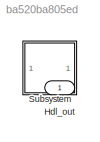
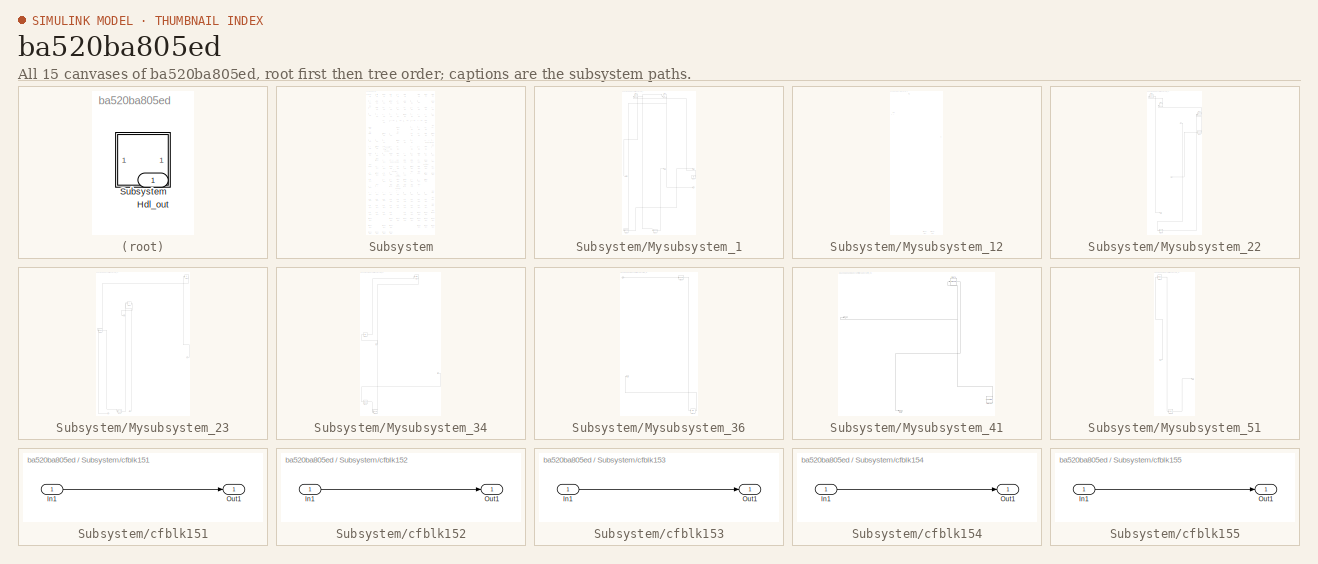
[diagram: thumbnail index - all 15 canvases of the model, root first then tree order]
MODEL slx_ba520ba805ed
KIND model
CONFIG AbsTol = auto
CONFIG EnableMultiTasking = off
CONFIG FixedStep = auto
CONFIG MaxStep = auto
CONFIG MinStep = auto
CONFIG RelTol = 1e-3
CONFIG SampleTimeConstraint = Unconstrained
CONFIG SolverName = VariableStepAuto
CONFIG StartTime = 0.0
CONFIG StopTime = 10.0
BLOCK [Outport] Hdl_out
  OutDataTypeStr = uint8
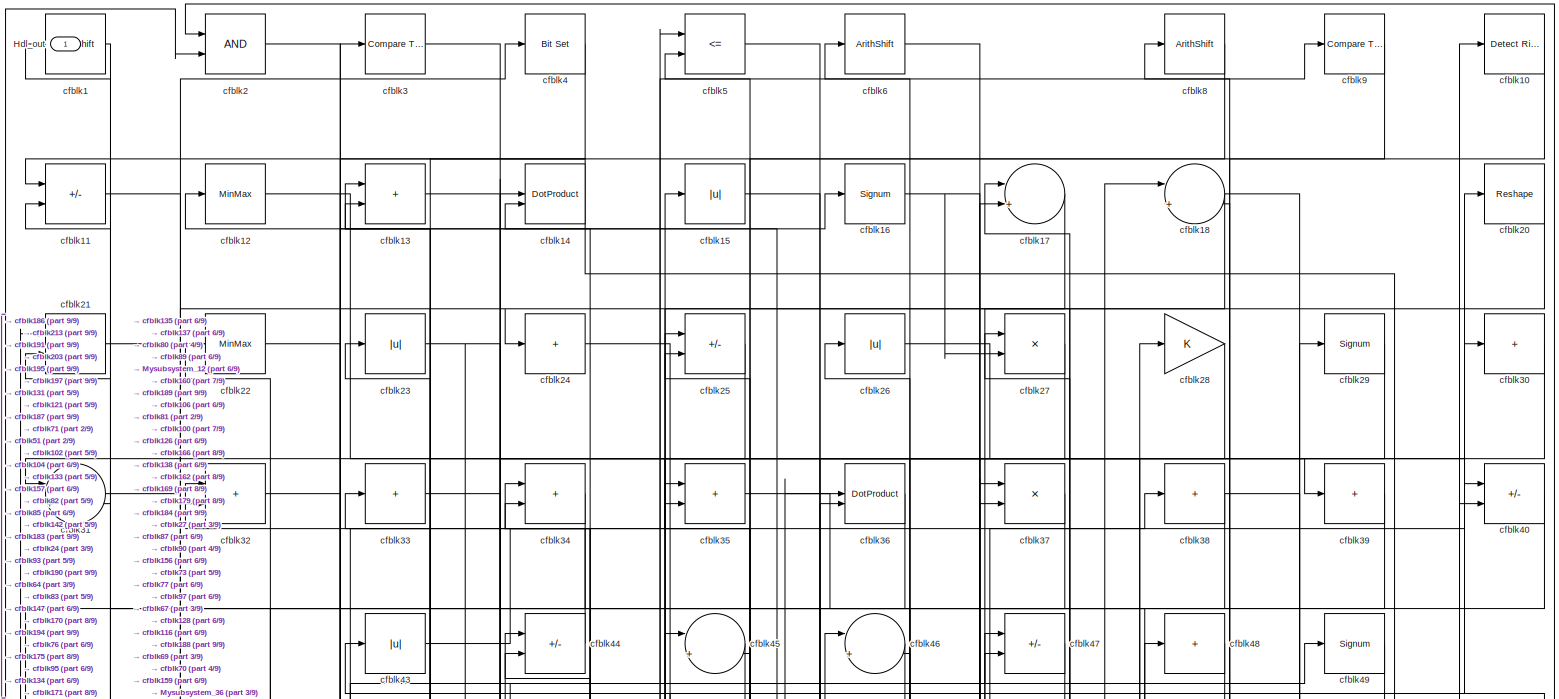
[diagram: Subsystem - part 1/9, full width, top band]
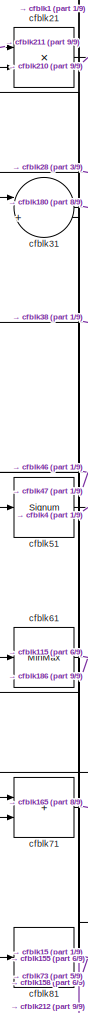
[diagram: Subsystem - part 2/9, top left region]
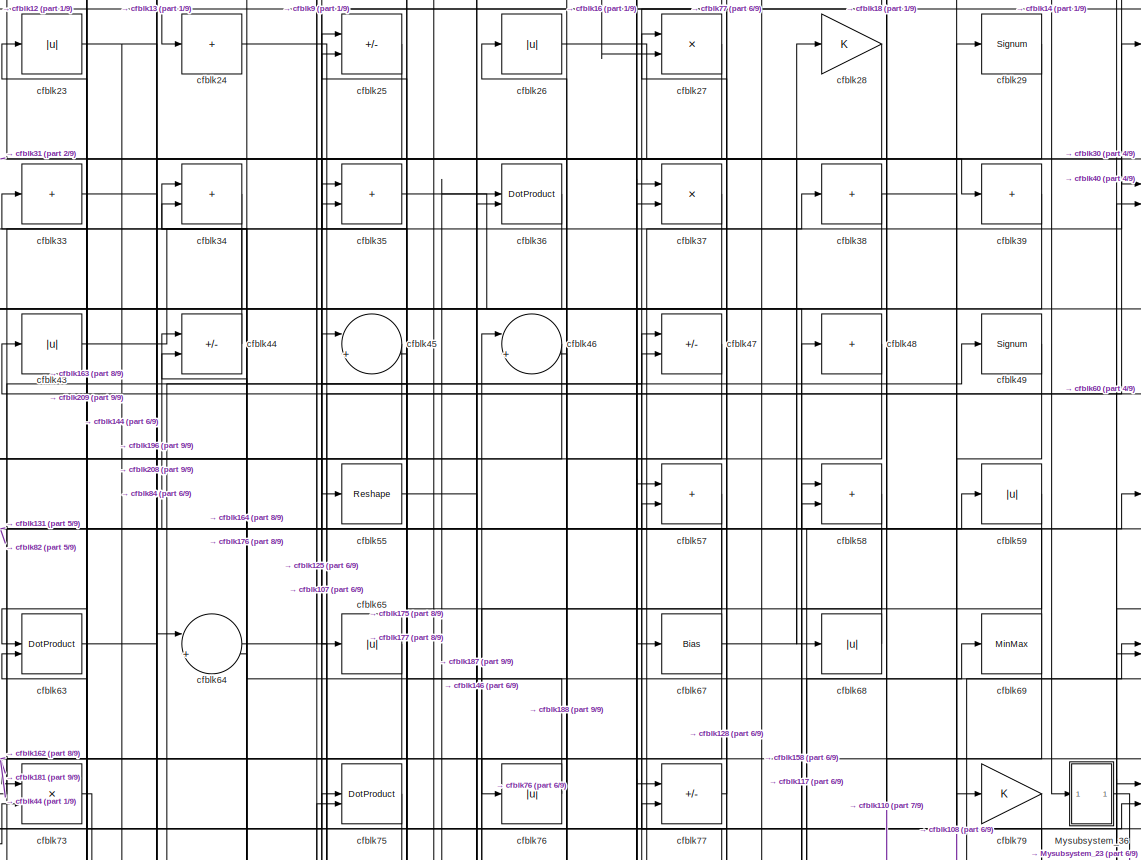
[diagram: Subsystem - part 3/9, top center region]
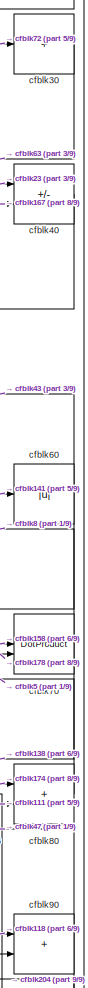
[diagram: Subsystem - part 4/9, top right region]
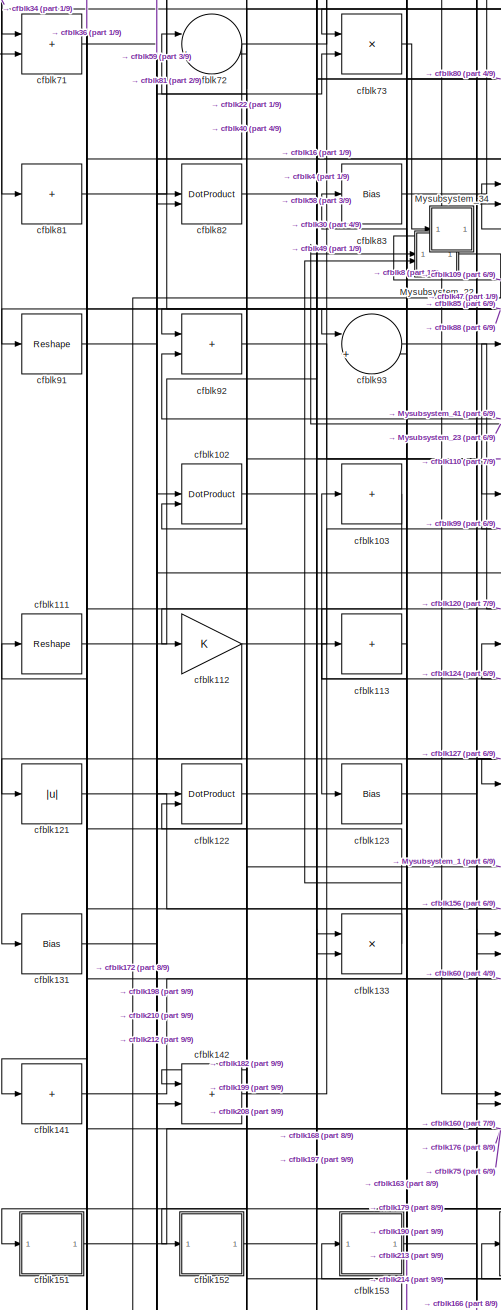
[diagram: Subsystem - part 5/9, middle left region]
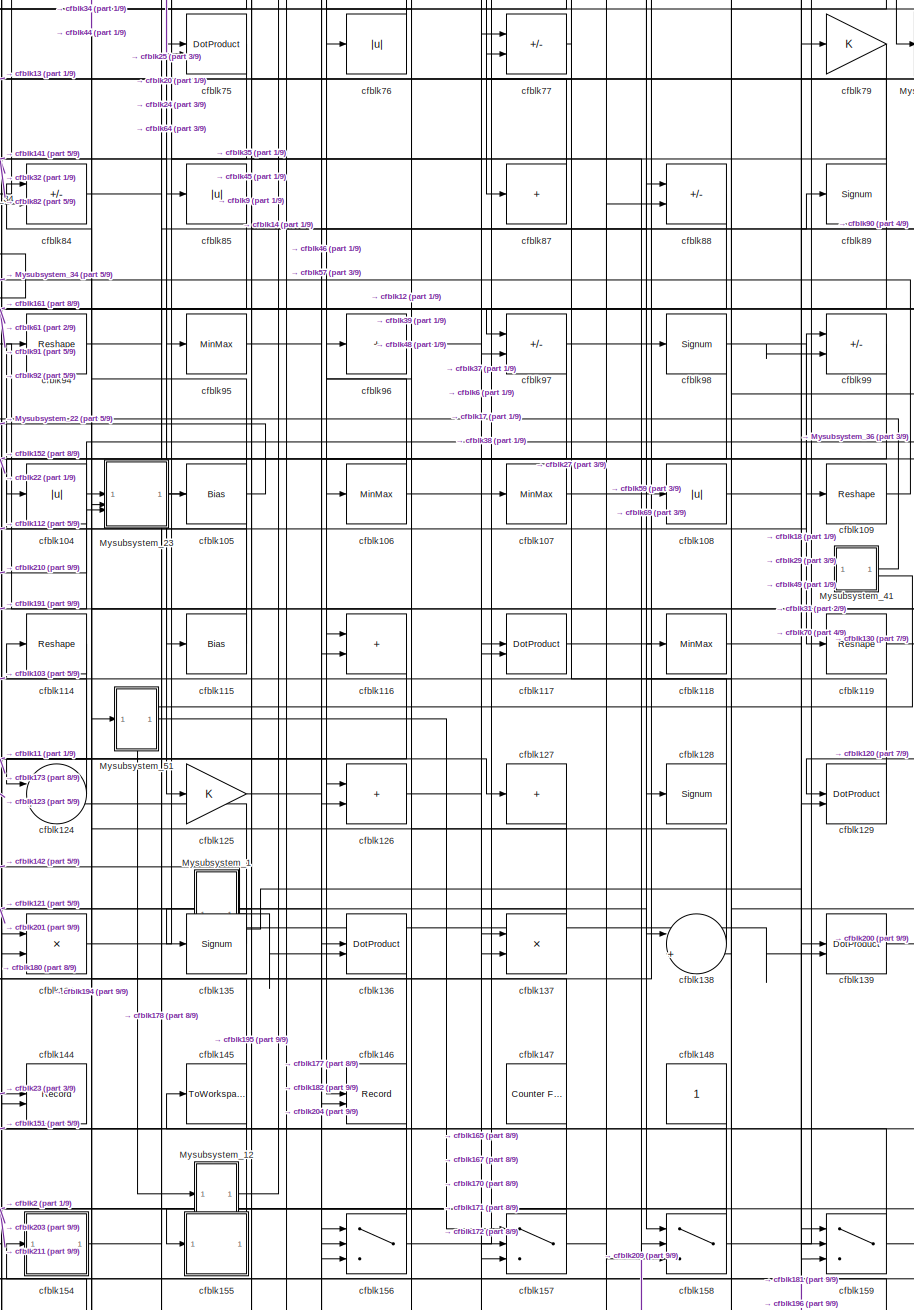
[diagram: Subsystem - part 6/9, central region]
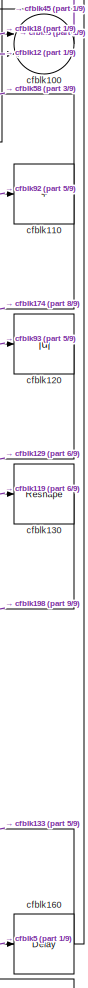
[diagram: Subsystem - part 7/9, middle right region]
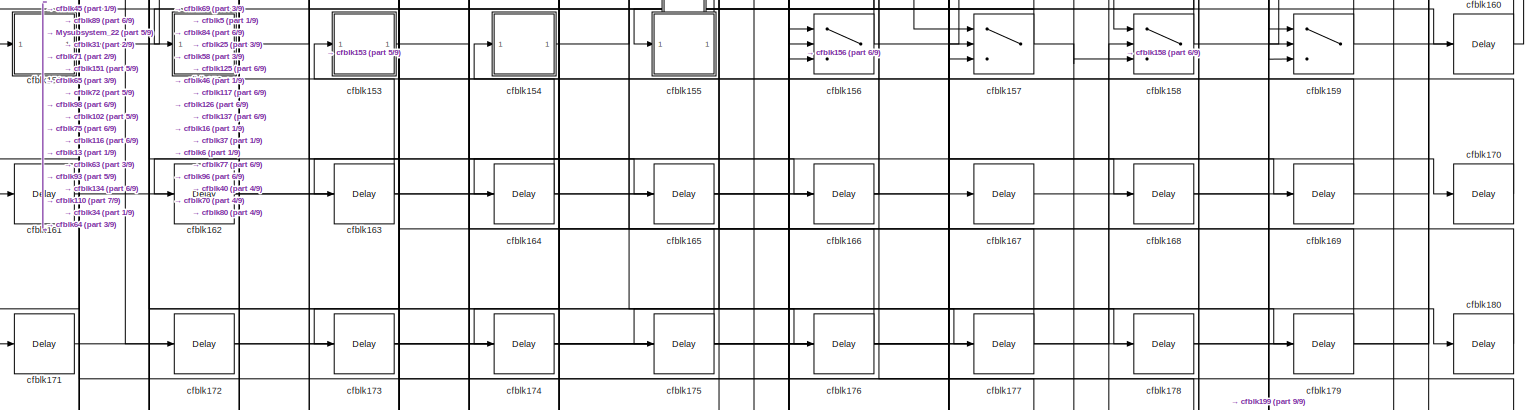
[diagram: Subsystem - part 8/9, full width, bottom band]
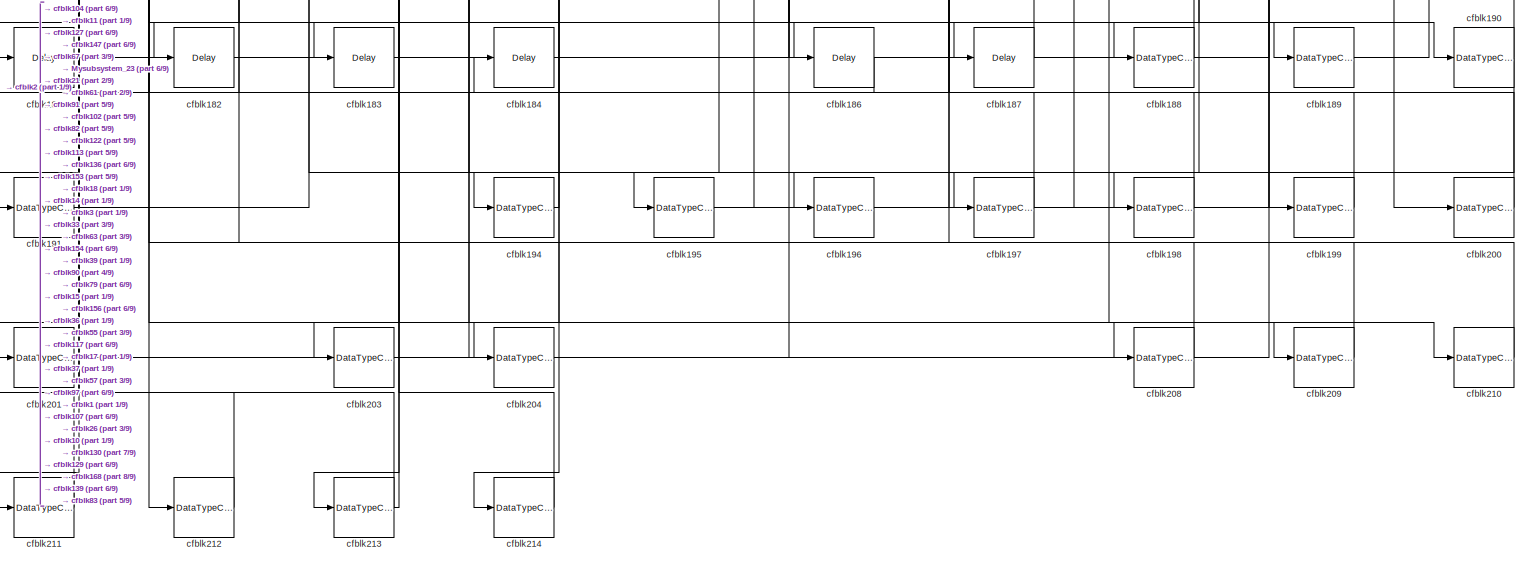
[diagram: Subsystem - part 9/9, full width, bottom band]
BLOCK [SubSystem] Subsystem
BLOCK [Outport] Subsystem/Hdl_out
  OutDataTypeStr = uint8
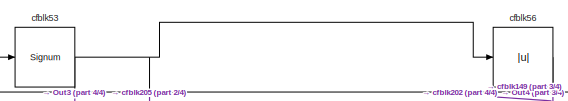
[diagram: Subsystem/Mysubsystem_1 - part 1/4, top center region]
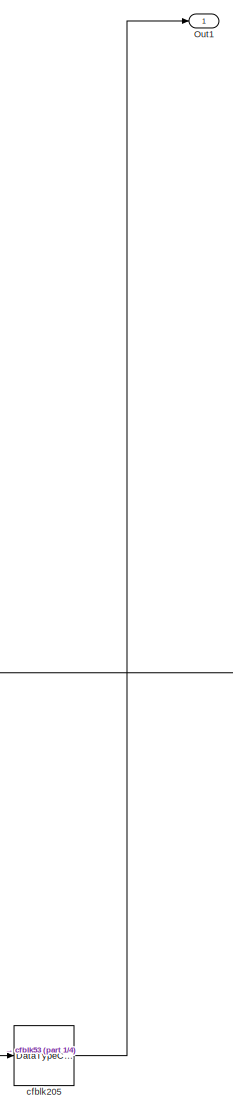
[diagram: Subsystem/Mysubsystem_1 - part 2/4, bottom center region]
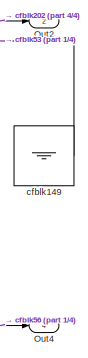
[diagram: Subsystem/Mysubsystem_1 - part 3/4, middle right region]
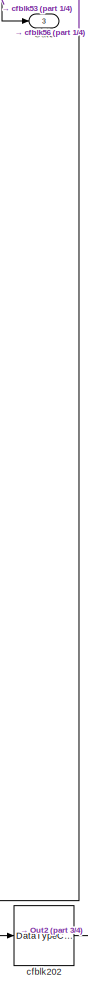
[diagram: Subsystem/Mysubsystem_1 - part 4/4, bottom left region]
BLOCK [SubSystem] Subsystem/Mysubsystem_1
  RTWFcnName = Mysubsystem_1
  RTWFcnNameOpts = User specified
  RTWFileNameOpts = Use function name
  RTWSystemCode = Reusable function
  TreatAsAtomicUnit = on
BLOCK [Outport] Subsystem/Mysubsystem_1/Out1
BLOCK [Outport] Subsystem/Mysubsystem_1/Out2
  Port = 2
BLOCK [Outport] Subsystem/Mysubsystem_1/Out3
  Port = 3
BLOCK [Outport] Subsystem/Mysubsystem_1/Out4
  Port = 4
BLOCK [Ground] Subsystem/Mysubsystem_1/cfblk149
BLOCK [DataTypeConversion] Subsystem/Mysubsystem_1/cfblk202
  OutDataTypeStr = uint8
  RndMeth = Floor
  SaturateOnIntegerOverflow = off
BLOCK [DataTypeConversion] Subsystem/Mysubsystem_1/cfblk205
  OutDataTypeStr = uint8
  RndMeth = Floor
  SaturateOnIntegerOverflow = off
BLOCK [Signum] Subsystem/Mysubsystem_1/cfblk53
BLOCK [Abs] Subsystem/Mysubsystem_1/cfblk56
  SaturateOnIntegerOverflow = off
BLOCK [SubSystem] Subsystem/Mysubsystem_12
  RTWFcnName = Mysubsystem_12
  RTWFcnNameOpts = User specified
  RTWFileNameOpts = Use function name
  RTWSystemCode = Reusable function
  TreatAsAtomicUnit = on
BLOCK [Inport] Subsystem/Mysubsystem_12/In1
BLOCK [Outport] Subsystem/Mysubsystem_12/Out1
BLOCK [DataTypeConversion] Subsystem/Mysubsystem_12/cfblk206
  OutDataTypeStr = uint8
  RndMeth = Floor
  SaturateOnIntegerOverflow = off
BLOCK [DataTypeConversion] Subsystem/Mysubsystem_12/cfblk207
  OutDataTypeStr = uint8
  RndMeth = Floor
  SaturateOnIntegerOverflow = off
BLOCK [Sum] Subsystem/Mysubsystem_12/cfblk42
  IconShape = rectangular
  Inputs = +
BLOCK [SubSystem] Subsystem/Mysubsystem_22
  RTWFcnName = Mysubsystem_22
  RTWFcnNameOpts = User specified
  RTWFileNameOpts = Use function name
  RTWSystemCode = Reusable function
  TreatAsAtomicUnit = on
BLOCK [Inport] Subsystem/Mysubsystem_22/In1
BLOCK [Inport] Subsystem/Mysubsystem_22/In2
  Port = 2
BLOCK [Outport] Subsystem/Mysubsystem_22/Out1
BLOCK [DataTypeConversion] Subsystem/Mysubsystem_22/cfblk192
  OutDataTypeStr = uint8
  RndMeth = Floor
  SaturateOnIntegerOverflow = off
BLOCK [Signum] Subsystem/Mysubsystem_22/cfblk41
BLOCK [Sum] Subsystem/Mysubsystem_22/cfblk52
  IconShape = rectangular
  Inputs = +
BLOCK [DotProduct] Subsystem/Mysubsystem_22/cfblk66
  OutDataTypeStr = Inherit: Inherit via internal rule
BLOCK [Reshape] Subsystem/Mysubsystem_22/cfblk86
BLOCK [SubSystem] Subsystem/Mysubsystem_23
  RTWFcnName = Mysubsystem_23
  RTWFcnNameOpts = User specified
  RTWFileNameOpts = Use function name
  RTWSystemCode = Reusable function
  TreatAsAtomicUnit = on
BLOCK [Inport] Subsystem/Mysubsystem_23/In1
BLOCK [Inport] Subsystem/Mysubsystem_23/In2
  Port = 2
BLOCK [Inport] Subsystem/Mysubsystem_23/In3
  Port = 3
BLOCK [Outport] Subsystem/Mysubsystem_23/Out1
BLOCK [DotProduct] Subsystem/Mysubsystem_23/cfblk101
  OutDataTypeStr = Inherit: Inherit via internal rule
BLOCK [DataTypeConversion] Subsystem/Mysubsystem_23/cfblk193
  OutDataTypeStr = uint8
  RndMeth = Floor
  SaturateOnIntegerOverflow = off
BLOCK [Abs] Subsystem/Mysubsystem_23/cfblk50
  SaturateOnIntegerOverflow = off
BLOCK [Product] Subsystem/Mysubsystem_23/cfblk74
  Inputs = */
  RndMeth = Zero
  SaturateOnIntegerOverflow = on
BLOCK [SubSystem] Subsystem/Mysubsystem_34
  RTWFcnName = Mysubsystem_34
  RTWFcnNameOpts = User specified
  RTWFileNameOpts = Use function name
  RTWSystemCode = Reusable function
  TreatAsAtomicUnit = on
BLOCK [Inport] Subsystem/Mysubsystem_34/In1
BLOCK [Inport] Subsystem/Mysubsystem_34/In2
  Port = 2
BLOCK [Signum] Subsystem/Mysubsystem_34/cfblk132
BLOCK [Record] Subsystem/Mysubsystem_34/cfblk143
  CompatibilityTag = XY
  FileSettingsInternal = {"entries":[{"content":{"excelSettings":{"content":{},"type":"Streamout.ExcelSettings"}},"type":"Streamout.FileSettingStorage","uuid":""}],"packageUris":["http:\/\/schema.mathworks.com\/mf0\/streamout_blocks\/R2020a"],"version":"1.0"}  <repeated x3 — deduplicated; at blocks: cfblk143, cfblk144, cfblk146>
  Layout = [1 1]
  SignalsInternal = {"entries":[{"content":{},"type":"RecordBlkView.InputSignals","uuid":""}],"packageUris":["http:\/\/schema.mathworks.com\/mf0\/streamout_blocks\/R2020a"],"version":"1.0"}
  VisualizationBindings = {"xyplotplugin":{"info":[{"series":[],"subplotID":1}]}}
  st = -1
BLOCK [Bias] Subsystem/Mysubsystem_34/cfblk62
  Bias = 0.0
  SaturateOnIntegerOverflow = off
BLOCK [Reference] Subsystem/Mysubsystem_34/cfblk7  REF=hdlsllib/Logic and Bit
Operations/Bit Slice
  SourceBlock = hdlsllib/Logic and Bit\nOperations/Bit Slice
  SourceType = Bit Slice
BLOCK [SubSystem] Subsystem/Mysubsystem_36
  RTWFcnName = Mysubsystem_36
  RTWFcnNameOpts = User specified
  RTWFileNameOpts = Use function name
  RTWSystemCode = Reusable function
  TreatAsAtomicUnit = on
BLOCK [Inport] Subsystem/Mysubsystem_36/In1
BLOCK [Outport] Subsystem/Mysubsystem_36/Out1
BLOCK [Bias] Subsystem/Mysubsystem_36/cfblk140
  Bias = 0.0
  SaturateOnIntegerOverflow = off
BLOCK [Reshape] Subsystem/Mysubsystem_36/cfblk19
BLOCK [SubSystem] Subsystem/Mysubsystem_41
  RTWFcnName = Mysubsystem_41
  RTWFcnNameOpts = User specified
  RTWFileNameOpts = Use function name
  RTWSystemCode = Reusable function
  TreatAsAtomicUnit = on
BLOCK [Outport] Subsystem/Mysubsystem_41/Out2
  Port = 2
BLOCK [Reference] Subsystem/Mysubsystem_41/cfblk150  REF=hdlsllib/Sources/Counter
Free-Running
  SourceBlock = hdlsllib/Sources/Counter\nFree-Running
  SourceType = Counter Free-Running
BLOCK [Signum] Subsystem/Mysubsystem_41/cfblk78
BLOCK [Outport] Subsystem/Mysubsystem_41/y
BLOCK [SubSystem] Subsystem/Mysubsystem_51
  RTWFcnName = Mysubsystem_51
  RTWFcnNameOpts = User specified
  RTWFileNameOpts = Use function name
  RTWSystemCode = Reusable function
  TreatAsAtomicUnit = on
BLOCK [Inport] Subsystem/Mysubsystem_51/In1
BLOCK [Outport] Subsystem/Mysubsystem_51/Out1
BLOCK [Delay] Subsystem/Mysubsystem_51/cfblk185
  InputPortMap = u0
  SampleTime = 1
BLOCK [MinMax] Subsystem/Mysubsystem_51/cfblk54
BLOCK [ArithShift] Subsystem/cfblk1
  BitShiftNumber = 8
  InputPortMap = u0
BLOCK [Reference] Subsystem/cfblk10  REF=hdlsllib/Logic and Bit
Operations/Detect Rise
Positive
  SourceBlock = hdlsllib/Logic and Bit\nOperations/Detect Rise\nPositive
  SourceType = Detect Rise Positive
BLOCK [Sum] Subsystem/cfblk100
  Inputs = |++
  OutDataTypeStr = uint8
BLOCK [DotProduct] Subsystem/cfblk102
  OutDataTypeStr = uint8
BLOCK [Sum] Subsystem/cfblk103
  IconShape = rectangular
  Inputs = +
  OutDataTypeStr = uint8
BLOCK [Abs] Subsystem/cfblk104
  OutDataTypeStr = uint8
  SaturateOnIntegerOverflow = off
BLOCK [Bias] Subsystem/cfblk105
  Bias = 0.0
  SaturateOnIntegerOverflow = off
BLOCK [MinMax] Subsystem/cfblk106
  OutDataTypeStr = uint8
BLOCK [MinMax] Subsystem/cfblk107
  OutDataTypeStr = uint8
BLOCK [Abs] Subsystem/cfblk108
  OutDataTypeStr = uint8
  SaturateOnIntegerOverflow = off
BLOCK [Reshape] Subsystem/cfblk109
BLOCK [Sum] Subsystem/cfblk11
  IconShape = rectangular
  Inputs = +-
  OutDataTypeStr = uint8
BLOCK [Sum] Subsystem/cfblk110
  IconShape = rectangular
  Inputs = +
  OutDataTypeStr = uint8
BLOCK [Reshape] Subsystem/cfblk111
BLOCK [Gain] Subsystem/cfblk112
  OutDataTypeStr = uint8
BLOCK [Sum] Subsystem/cfblk113
  IconShape = rectangular
  Inputs = +
  OutDataTypeStr = uint8
BLOCK [Reshape] Subsystem/cfblk114
BLOCK [Bias] Subsystem/cfblk115
  Bias = 0.0
  SaturateOnIntegerOverflow = off
BLOCK [Sum] Subsystem/cfblk116
  IconShape = rectangular
  OutDataTypeStr = uint8
BLOCK [DotProduct] Subsystem/cfblk117
  OutDataTypeStr = uint8
BLOCK [MinMax] Subsystem/cfblk118
  OutDataTypeStr = uint8
BLOCK [Reshape] Subsystem/cfblk119
BLOCK [MinMax] Subsystem/cfblk12
  OutDataTypeStr = uint8
BLOCK [Abs] Subsystem/cfblk120
  OutDataTypeStr = uint8
  SaturateOnIntegerOverflow = off
BLOCK [Abs] Subsystem/cfblk121
  OutDataTypeStr = uint8
  SaturateOnIntegerOverflow = off
BLOCK [DotProduct] Subsystem/cfblk122
  OutDataTypeStr = uint8
BLOCK [Bias] Subsystem/cfblk123
  Bias = 0.0
  SaturateOnIntegerOverflow = off
BLOCK [Sum] Subsystem/cfblk124
  Inputs = |++
  OutDataTypeStr = uint8
BLOCK [Gain] Subsystem/cfblk125
  OutDataTypeStr = uint8
BLOCK [Sum] Subsystem/cfblk126
  IconShape = rectangular
  OutDataTypeStr = uint8
BLOCK [Sum] Subsystem/cfblk127
  IconShape = rectangular
  Inputs = +
  OutDataTypeStr = uint8
BLOCK [Signum] Subsystem/cfblk128
BLOCK [DotProduct] Subsystem/cfblk129
  OutDataTypeStr = uint8
BLOCK [Sum] Subsystem/cfblk13
  IconShape = rectangular
  OutDataTypeStr = uint8
BLOCK [Reshape] Subsystem/cfblk130
BLOCK [Bias] Subsystem/cfblk131
  Bias = 0.0
  SaturateOnIntegerOverflow = off
BLOCK [Product] Subsystem/cfblk133
  Inputs = */
  OutDataTypeStr = uint8
  RndMeth = Zero
  SaturateOnIntegerOverflow = on
BLOCK [Product] Subsystem/cfblk134
  Inputs = */
  OutDataTypeStr = uint8
  RndMeth = Zero
  SaturateOnIntegerOverflow = on
BLOCK [Signum] Subsystem/cfblk135
BLOCK [DotProduct] Subsystem/cfblk136
  OutDataTypeStr = uint8
BLOCK [Product] Subsystem/cfblk137
  Inputs = */
  OutDataTypeStr = uint8
  RndMeth = Zero
  SaturateOnIntegerOverflow = on
BLOCK [Sum] Subsystem/cfblk138
  Inputs = |++
  OutDataTypeStr = uint8
BLOCK [DotProduct] Subsystem/cfblk139
  OutDataTypeStr = uint8
BLOCK [DotProduct] Subsystem/cfblk14
  OutDataTypeStr = uint8
BLOCK [Sum] Subsystem/cfblk141
  IconShape = rectangular
  Inputs = +
  OutDataTypeStr = uint8
BLOCK [Sum] Subsystem/cfblk142
  IconShape = rectangular
  OutDataTypeStr = uint8
BLOCK [Record] Subsystem/cfblk144
  CompatibilityTag = XY
  Layout = [1 1]
  SignalsInternal = {"entries":[{"content":{"signals":[{"content":{"blockPath":[],"dimensions":[1],"domain":"","lineColor":"#a2142f","plots":[1],"port":1,"signalID":16732,"signalName":"cfblk23"},"type":"RecordBlkView.Signal","uuid":""},{"content":{"blockPath":[],"dimensions":[1],"domain":"","lineColor":"#139fff","plots":[1],"port":2,"signalID":16735,"signalName":"cfblk97"},"type":"RecordBlkView.Signal","uuid":""}]},"...<+142ch>
  VisualizationBindings = {"xyplotplugin":{"info":[{"series":[{"bindingParametersList":[{"parameter":"X-Axis","signalID":16732,"signalName":"cfblk23"},{"parameter":"Y-Axis","signalID":16735,"signalName":"cfblk97"}],"seriesID":30056}],"subplotID":1}]}}
  st = -1
BLOCK [ToWorkspace] Subsystem/cfblk145
  MaxDataPoints = inf
  SampleTime = -1
  SaveFormat = Timeseries
  VariableName = simout
BLOCK [Record] Subsystem/cfblk146
  CompatibilityTag = XY
  Layout = [1 1]
  SignalsInternal = {"entries":[{"content":{"signals":[{"content":{"blockPath":[],"dimensions":[1],"domain":"","lineColor":"#a2142f","plots":[1],"port":1,"signalID":16724,"signalName":"cfblk57"},"type":"RecordBlkView.Signal","uuid":""},{"content":{"blockPath":[],"dimensions":[1],"domain":"","lineColor":"#139fff","plots":[1],"port":2,"signalID":16727,"signalName":"cfblk29"},"type":"RecordBlkView.Signal","uuid":""}]},"...<+142ch>
  VisualizationBindings = {"xyplotplugin":{"info":[{"series":[{"bindingParametersList":[{"parameter":"X-Axis","signalID":16724,"signalName":"cfblk57"},{"parameter":"Y-Axis","signalID":16727,"signalName":"cfblk29"}],"seriesID":52656}],"subplotID":1}]}}
  st = -1
BLOCK [Reference] Subsystem/cfblk147  REF=hdlsllib/Sources/Counter
Free-Running
  SourceBlock = hdlsllib/Sources/Counter\nFree-Running
  SourceType = Counter Free-Running
BLOCK [Constant] Subsystem/cfblk148
  OutDataTypeStr = uint8
  SampleTime = -1
BLOCK [Abs] Subsystem/cfblk15
  OutDataTypeStr = uint8
  SaturateOnIntegerOverflow = off
BLOCK [SubSystem] Subsystem/cfblk151
  LibrarySourceBlock = hdlsllib/Ports &\nSubsystems/Subsystem
BLOCK [Inport] Subsystem/cfblk151/In1
BLOCK [Outport] Subsystem/cfblk151/Out1
BLOCK [SubSystem] Subsystem/cfblk152
  LibrarySourceBlock = hdlsllib/Ports &\nSubsystems/Subsystem
BLOCK [Inport] Subsystem/cfblk152/In1
BLOCK [Outport] Subsystem/cfblk152/Out1
BLOCK [SubSystem] Subsystem/cfblk153
  LibrarySourceBlock = hdlsllib/Ports &\nSubsystems/Subsystem
BLOCK [Inport] Subsystem/cfblk153/In1
BLOCK [Outport] Subsystem/cfblk153/Out1
BLOCK [SubSystem] Subsystem/cfblk154
  LibrarySourceBlock = hdlsllib/Ports &\nSubsystems/Subsystem
BLOCK [Inport] Subsystem/cfblk154/In1
BLOCK [Outport] Subsystem/cfblk154/Out1
BLOCK [SubSystem] Subsystem/cfblk155
  LibrarySourceBlock = hdlsllib/Ports &\nSubsystems/Subsystem
BLOCK [Inport] Subsystem/cfblk155/In1
BLOCK [Outport] Subsystem/cfblk155/Out1
BLOCK [Switch] Subsystem/cfblk156
  InputSameDT = off
  OutDataTypeStr = uint8
  SaturateOnIntegerOverflow = off
BLOCK [Switch] Subsystem/cfblk157
  InputSameDT = off
  OutDataTypeStr = uint8
  SaturateOnIntegerOverflow = off
BLOCK [Switch] Subsystem/cfblk158
  InputSameDT = off
  OutDataTypeStr = uint8
  SaturateOnIntegerOverflow = off
BLOCK [Switch] Subsystem/cfblk159
  InputSameDT = off
  OutDataTypeStr = uint8
  SaturateOnIntegerOverflow = off
BLOCK [Signum] Subsystem/cfblk16
BLOCK [Delay] Subsystem/cfblk160
  InputPortMap = u0
  SampleTime = 1
BLOCK [Delay] Subsystem/cfblk161
  InputPortMap = u0
  SampleTime = 1
BLOCK [Delay] Subsystem/cfblk162
  InputPortMap = u0
  SampleTime = 1
BLOCK [Delay] Subsystem/cfblk163
  InputPortMap = u0
  SampleTime = 1
BLOCK [Delay] Subsystem/cfblk164
  InputPortMap = u0
  SampleTime = 1
BLOCK [Delay] Subsystem/cfblk165
  InputPortMap = u0
  SampleTime = 1
BLOCK [Delay] Subsystem/cfblk166
  InputPortMap = u0
  SampleTime = 1
BLOCK [Delay] Subsystem/cfblk167
  InputPortMap = u0
  SampleTime = 1
BLOCK [Delay] Subsystem/cfblk168
  InputPortMap = u0
  SampleTime = 1
BLOCK [Delay] Subsystem/cfblk169
  InputPortMap = u0
  SampleTime = 1
BLOCK [Sum] Subsystem/cfblk17
  Inputs = |++
  OutDataTypeStr = uint8
BLOCK [Delay] Subsystem/cfblk170
  InputPortMap = u0
  SampleTime = 1
BLOCK [Delay] Subsystem/cfblk171
  InputPortMap = u0
  SampleTime = 1
BLOCK [Delay] Subsystem/cfblk172
  InputPortMap = u0
  SampleTime = 1
BLOCK [Delay] Subsystem/cfblk173
  InputPortMap = u0
  SampleTime = 1
BLOCK [Delay] Subsystem/cfblk174
  InputPortMap = u0
  SampleTime = 1
BLOCK [Delay] Subsystem/cfblk175
  InputPortMap = u0
  SampleTime = 1
BLOCK [Delay] Subsystem/cfblk176
  InputPortMap = u0
  SampleTime = 1
BLOCK [Delay] Subsystem/cfblk177
  InputPortMap = u0
  SampleTime = 1
BLOCK [Delay] Subsystem/cfblk178
  InputPortMap = u0
  SampleTime = 1
BLOCK [Delay] Subsystem/cfblk179
  InputPortMap = u0
  SampleTime = 1
BLOCK [Sum] Subsystem/cfblk18
  Inputs = |++
  OutDataTypeStr = uint8
BLOCK [Delay] Subsystem/cfblk180
  InputPortMap = u0
  SampleTime = 1
BLOCK [Delay] Subsystem/cfblk181
  InputPortMap = u0
  SampleTime = 1
BLOCK [Delay] Subsystem/cfblk182
  InputPortMap = u0
  SampleTime = 1
BLOCK [Delay] Subsystem/cfblk183
  InputPortMap = u0
  SampleTime = 1
BLOCK [Delay] Subsystem/cfblk184
  InputPortMap = u0
  SampleTime = 1
BLOCK [Delay] Subsystem/cfblk186
  InputPortMap = u0
  SampleTime = 1
BLOCK [Delay] Subsystem/cfblk187
  InputPortMap = u0
  SampleTime = 1
BLOCK [DataTypeConversion] Subsystem/cfblk188
  OutDataTypeStr = uint8
  RndMeth = Floor
  SaturateOnIntegerOverflow = off
BLOCK [DataTypeConversion] Subsystem/cfblk189
  OutDataTypeStr = uint8
  RndMeth = Floor
  SaturateOnIntegerOverflow = off
BLOCK [DataTypeConversion] Subsystem/cfblk190
  OutDataTypeStr = uint8
  RndMeth = Floor
  SaturateOnIntegerOverflow = off
BLOCK [DataTypeConversion] Subsystem/cfblk191
  OutDataTypeStr = uint8
  RndMeth = Floor
  SaturateOnIntegerOverflow = off
BLOCK [DataTypeConversion] Subsystem/cfblk194
  OutDataTypeStr = uint8
  RndMeth = Floor
  SaturateOnIntegerOverflow = off
BLOCK [DataTypeConversion] Subsystem/cfblk195
  OutDataTypeStr = uint8
  RndMeth = Floor
  SaturateOnIntegerOverflow = off
BLOCK [DataTypeConversion] Subsystem/cfblk196
  OutDataTypeStr = uint8
  RndMeth = Floor
  SaturateOnIntegerOverflow = off
BLOCK [DataTypeConversion] Subsystem/cfblk197
  OutDataTypeStr = uint8
  RndMeth = Floor
  SaturateOnIntegerOverflow = off
BLOCK [DataTypeConversion] Subsystem/cfblk198
  OutDataTypeStr = uint8
  RndMeth = Floor
  SaturateOnIntegerOverflow = off
BLOCK [DataTypeConversion] Subsystem/cfblk199
  OutDataTypeStr = uint8
  RndMeth = Floor
  SaturateOnIntegerOverflow = off
BLOCK [Logic] Subsystem/cfblk2
  AllPortsSameDT = off
  OutDataTypeStr = boolean
BLOCK [Reshape] Subsystem/cfblk20
BLOCK [DataTypeConversion] Subsystem/cfblk200
  OutDataTypeStr = uint8
  RndMeth = Floor
  SaturateOnIntegerOverflow = off
BLOCK [DataTypeConversion] Subsystem/cfblk201
  OutDataTypeStr = uint8
  RndMeth = Floor
  SaturateOnIntegerOverflow = off
BLOCK [DataTypeConversion] Subsystem/cfblk203
  OutDataTypeStr = uint8
  RndMeth = Floor
  SaturateOnIntegerOverflow = off
BLOCK [DataTypeConversion] Subsystem/cfblk204
  OutDataTypeStr = uint8
  RndMeth = Floor
  SaturateOnIntegerOverflow = off
BLOCK [DataTypeConversion] Subsystem/cfblk208
  OutDataTypeStr = uint8
  RndMeth = Floor
  SaturateOnIntegerOverflow = off
BLOCK [DataTypeConversion] Subsystem/cfblk209
  OutDataTypeStr = uint8
  RndMeth = Floor
  SaturateOnIntegerOverflow = off
BLOCK [Product] Subsystem/cfblk21
  Inputs = */
  OutDataTypeStr = uint8
  RndMeth = Zero
  SaturateOnIntegerOverflow = on
BLOCK [DataTypeConversion] Subsystem/cfblk210
  OutDataTypeStr = uint8
  RndMeth = Floor
  SaturateOnIntegerOverflow = off
BLOCK [DataTypeConversion] Subsystem/cfblk211
  OutDataTypeStr = uint8
  RndMeth = Floor
  SaturateOnIntegerOverflow = off
BLOCK [DataTypeConversion] Subsystem/cfblk212
  OutDataTypeStr = uint8
  RndMeth = Floor
  SaturateOnIntegerOverflow = off
BLOCK [DataTypeConversion] Subsystem/cfblk213
  OutDataTypeStr = uint8
  RndMeth = Floor
  SaturateOnIntegerOverflow = off
BLOCK [DataTypeConversion] Subsystem/cfblk214
  OutDataTypeStr = uint8
  RndMeth = Floor
  SaturateOnIntegerOverflow = off
BLOCK [MinMax] Subsystem/cfblk22
  OutDataTypeStr = uint8
BLOCK [Abs] Subsystem/cfblk23
  OutDataTypeStr = uint8
  SaturateOnIntegerOverflow = off
BLOCK [Sum] Subsystem/cfblk24
  IconShape = rectangular
  Inputs = +
  OutDataTypeStr = uint8
BLOCK [Sum] Subsystem/cfblk25
  IconShape = rectangular
  Inputs = +-
  OutDataTypeStr = uint8
BLOCK [Abs] Subsystem/cfblk26
  OutDataTypeStr = uint8
  SaturateOnIntegerOverflow = off
BLOCK [Product] Subsystem/cfblk27
  Inputs = */
  OutDataTypeStr = uint8
  RndMeth = Zero
  SaturateOnIntegerOverflow = on
BLOCK [Gain] Subsystem/cfblk28
  OutDataTypeStr = uint8
BLOCK [Signum] Subsystem/cfblk29
BLOCK [Reference] Subsystem/cfblk3  REF=hdlsllib/Logic and Bit
Operations/Compare
To Zero
  SourceBlock = hdlsllib/Logic and Bit\nOperations/Compare\nTo Zero
  SourceType = Compare To Zero
BLOCK [Sum] Subsystem/cfblk30
  IconShape = rectangular
  Inputs = +
  OutDataTypeStr = uint8
BLOCK [Sum] Subsystem/cfblk31
  Inputs = |++
  OutDataTypeStr = uint8
BLOCK [Sum] Subsystem/cfblk32
  IconShape = rectangular
  OutDataTypeStr = uint8
BLOCK [Sum] Subsystem/cfblk33
  IconShape = rectangular
  Inputs = +
  OutDataTypeStr = uint8
BLOCK [Sum] Subsystem/cfblk34
  IconShape = rectangular
  OutDataTypeStr = uint8
BLOCK [Sum] Subsystem/cfblk35
  IconShape = rectangular
  OutDataTypeStr = uint8
BLOCK [DotProduct] Subsystem/cfblk36
  OutDataTypeStr = uint8
BLOCK [Product] Subsystem/cfblk37
  Inputs = */
  OutDataTypeStr = uint8
  RndMeth = Zero
  SaturateOnIntegerOverflow = on
BLOCK [Sum] Subsystem/cfblk38
  IconShape = rectangular
  Inputs = +
  OutDataTypeStr = uint8
BLOCK [Sum] Subsystem/cfblk39
  IconShape = rectangular
  Inputs = +
  OutDataTypeStr = uint8
BLOCK [Reference] Subsystem/cfblk4  REF=simulink/Logic and Bit
Operations/Bit Set
  LibrarySourceBlock = hdlsllib/Logic and Bit\nOperations/Bit Set
  SourceBlock = simulink/Logic and Bit\nOperations/Bit Set
  SourceType = Bit Set
BLOCK [Sum] Subsystem/cfblk40
  IconShape = rectangular
  Inputs = +-
  OutDataTypeStr = uint8
BLOCK [Abs] Subsystem/cfblk43
  OutDataTypeStr = uint8
  SaturateOnIntegerOverflow = off
BLOCK [Sum] Subsystem/cfblk44
  IconShape = rectangular
  Inputs = +-
  OutDataTypeStr = uint8
BLOCK [Sum] Subsystem/cfblk45
  Inputs = |++
  OutDataTypeStr = uint8
BLOCK [Sum] Subsystem/cfblk46
  Inputs = |++
  OutDataTypeStr = uint8
BLOCK [Sum] Subsystem/cfblk47
  IconShape = rectangular
  Inputs = +-
  OutDataTypeStr = uint8
BLOCK [Sum] Subsystem/cfblk48
  IconShape = rectangular
  Inputs = +
  OutDataTypeStr = uint8
BLOCK [Signum] Subsystem/cfblk49
BLOCK [RelationalOperator] Subsystem/cfblk5
  InputSameDT = off
  Operator = <=
  OutDataTypeStr = boolean
BLOCK [Signum] Subsystem/cfblk51
BLOCK [Reshape] Subsystem/cfblk55
BLOCK [Sum] Subsystem/cfblk57
  IconShape = rectangular
  OutDataTypeStr = uint8
BLOCK [Sum] Subsystem/cfblk58
  IconShape = rectangular
  OutDataTypeStr = uint8
BLOCK [Abs] Subsystem/cfblk59
  OutDataTypeStr = uint8
  SaturateOnIntegerOverflow = off
BLOCK [ArithShift] Subsystem/cfblk6
  BitShiftNumber = 8
  InputPortMap = u0
BLOCK [Abs] Subsystem/cfblk60
  OutDataTypeStr = uint8
  SaturateOnIntegerOverflow = off
BLOCK [MinMax] Subsystem/cfblk61
  OutDataTypeStr = uint8
BLOCK [DotProduct] Subsystem/cfblk63
  OutDataTypeStr = uint8
BLOCK [Sum] Subsystem/cfblk64
  Inputs = |++
  OutDataTypeStr = uint8
BLOCK [Abs] Subsystem/cfblk65
  OutDataTypeStr = uint8
  SaturateOnIntegerOverflow = off
BLOCK [Bias] Subsystem/cfblk67
  Bias = 0.0
  SaturateOnIntegerOverflow = off
BLOCK [Abs] Subsystem/cfblk68
  OutDataTypeStr = uint8
  SaturateOnIntegerOverflow = off
BLOCK [MinMax] Subsystem/cfblk69
  OutDataTypeStr = uint8
BLOCK [DotProduct] Subsystem/cfblk70
  OutDataTypeStr = uint8
BLOCK [Sum] Subsystem/cfblk71
  IconShape = rectangular
  OutDataTypeStr = uint8
BLOCK [Sum] Subsystem/cfblk72
  Inputs = |++
  OutDataTypeStr = uint8
BLOCK [Product] Subsystem/cfblk73
  Inputs = */
  OutDataTypeStr = uint8
  RndMeth = Zero
  SaturateOnIntegerOverflow = on
BLOCK [DotProduct] Subsystem/cfblk75
  OutDataTypeStr = uint8
BLOCK [Abs] Subsystem/cfblk76
  OutDataTypeStr = uint8
  SaturateOnIntegerOverflow = off
BLOCK [Sum] Subsystem/cfblk77
  IconShape = rectangular
  Inputs = +-
  OutDataTypeStr = uint8
BLOCK [Gain] Subsystem/cfblk79
  OutDataTypeStr = uint8
BLOCK [ArithShift] Subsystem/cfblk8
  BitShiftNumber = 8
  InputPortMap = u0
BLOCK [Sum] Subsystem/cfblk80
  IconShape = rectangular
  OutDataTypeStr = uint8
BLOCK [Sum] Subsystem/cfblk81
  IconShape = rectangular
  Inputs = +
  OutDataTypeStr = uint8
BLOCK [DotProduct] Subsystem/cfblk82
  OutDataTypeStr = uint8
BLOCK [Bias] Subsystem/cfblk83
  Bias = 0.0
  SaturateOnIntegerOverflow = off
BLOCK [Sum] Subsystem/cfblk84
  IconShape = rectangular
  Inputs = +-
  OutDataTypeStr = uint8
BLOCK [Abs] Subsystem/cfblk85
  OutDataTypeStr = uint8
  SaturateOnIntegerOverflow = off
BLOCK [Sum] Subsystem/cfblk87
  IconShape = rectangular
  Inputs = +
  OutDataTypeStr = uint8
BLOCK [Sum] Subsystem/cfblk88
  IconShape = rectangular
  Inputs = +-
  OutDataTypeStr = uint8
BLOCK [Signum] Subsystem/cfblk89
BLOCK [Reference] Subsystem/cfblk9  REF=hdlsllib/Logic and Bit
Operations/Compare
To Constant
  SourceBlock = hdlsllib/Logic and Bit\nOperations/Compare\nTo Constant
  SourceType = Compare To Constant
BLOCK [Sum] Subsystem/cfblk90
  IconShape = rectangular
  OutDataTypeStr = uint8
BLOCK [Reshape] Subsystem/cfblk91
BLOCK [Sum] Subsystem/cfblk92
  IconShape = rectangular
  OutDataTypeStr = uint8
BLOCK [Sum] Subsystem/cfblk93
  Inputs = |++
  OutDataTypeStr = uint8
BLOCK [Reshape] Subsystem/cfblk94
BLOCK [MinMax] Subsystem/cfblk95
  OutDataTypeStr = uint8
BLOCK [Sum] Subsystem/cfblk96
  IconShape = rectangular
  Inputs = +
  OutDataTypeStr = uint8
BLOCK [Sum] Subsystem/cfblk97
  IconShape = rectangular
  Inputs = +-
  OutDataTypeStr = uint8
BLOCK [Signum] Subsystem/cfblk98
BLOCK [Sum] Subsystem/cfblk99
  IconShape = rectangular
  Inputs = +-
  OutDataTypeStr = uint8
LINE Subsystem/Mysubsystem_1/cfblk149:1 -> Subsystem/Mysubsystem_1/cfblk53:1
LINE Subsystem/Mysubsystem_1/cfblk202:1 -> Subsystem/Mysubsystem_1/Out2:1
LINE Subsystem/Mysubsystem_1/cfblk205:1 -> Subsystem/Mysubsystem_1/Out1:1
NET Subsystem/Mysubsystem_1/cfblk53:1 -> Subsystem/Mysubsystem_1/Out3:1, Subsystem/Mysubsystem_1/cfblk205:1, Subsystem/Mysubsystem_1/cfblk56:1
NET Subsystem/Mysubsystem_1/cfblk56:1 -> Subsystem/Mysubsystem_1/Out4:1, Subsystem/Mysubsystem_1/cfblk202:1
LINE Subsystem/Mysubsystem_12/In1:1 -> Subsystem/Mysubsystem_12/cfblk207:1
LINE Subsystem/Mysubsystem_12/cfblk206:1 -> Subsystem/Mysubsystem_12/Out1:1
LINE Subsystem/Mysubsystem_12/cfblk207:1 -> Subsystem/Mysubsystem_12/cfblk42:1
LINE Subsystem/Mysubsystem_12/cfblk42:1 -> Subsystem/Mysubsystem_12/cfblk206:1
LINE Subsystem/Mysubsystem_12:1 -> Subsystem/cfblk14:2
LINE Subsystem/Mysubsystem_1:1 -> Subsystem/cfblk136:2
LINE Subsystem/Mysubsystem_1:2 -> Subsystem/cfblk139:2
LINE Subsystem/Mysubsystem_1:3 -> Subsystem/cfblk142:1
LINE Subsystem/Mysubsystem_1:4 -> Subsystem/cfblk159:3
LINE Subsystem/Mysubsystem_22/In1:1 -> Subsystem/Mysubsystem_22/cfblk192:1
LINE Subsystem/Mysubsystem_22/In2:1 -> Subsystem/Mysubsystem_22/cfblk86:1
LINE Subsystem/Mysubsystem_22/cfblk192:1 -> Subsystem/Mysubsystem_22/cfblk66:2
LINE Subsystem/Mysubsystem_22/cfblk41:1 -> Subsystem/Mysubsystem_22/Out1:1
LINE Subsystem/Mysubsystem_22/cfblk52:1 -> Subsystem/Mysubsystem_22/cfblk41:1
LINE Subsystem/Mysubsystem_22/cfblk66:1 -> Subsystem/Mysubsystem_22/cfblk52:1
LINE Subsystem/Mysubsystem_22/cfblk86:1 -> Subsystem/Mysubsystem_22/cfblk66:1
LINE Subsystem/Mysubsystem_22:1 -> Subsystem/cfblk172:1
LINE Subsystem/Mysubsystem_23/In1:1 -> Subsystem/Mysubsystem_23/cfblk50:1
LINE Subsystem/Mysubsystem_23/In2:1 -> Subsystem/Mysubsystem_23/cfblk74:2
LINE Subsystem/Mysubsystem_23/In3:1 -> Subsystem/Mysubsystem_23/cfblk101:2
LINE Subsystem/Mysubsystem_23/cfblk101:1 -> Subsystem/Mysubsystem_23/cfblk193:1
LINE Subsystem/Mysubsystem_23/cfblk193:1 -> Subsystem/Mysubsystem_23/cfblk74:1
LINE Subsystem/Mysubsystem_23/cfblk50:1 -> Subsystem/Mysubsystem_23/cfblk101:1
LINE Subsystem/Mysubsystem_23/cfblk74:1 -> Subsystem/Mysubsystem_23/Out1:1
LINE Subsystem/Mysubsystem_23:1 -> Subsystem/Mysubsystem_22:1
LINE Subsystem/Mysubsystem_34/In1:1 -> Subsystem/Mysubsystem_34/cfblk62:1
LINE Subsystem/Mysubsystem_34/In2:1 -> Subsystem/Mysubsystem_34/cfblk132:1
LINE Subsystem/Mysubsystem_34/cfblk132:1 -> Subsystem/Mysubsystem_34/cfblk143:2
LINE Subsystem/Mysubsystem_34/cfblk62:1 -> Subsystem/Mysubsystem_34/cfblk7:1
LINE Subsystem/Mysubsystem_34/cfblk7:1 -> Subsystem/Mysubsystem_34/cfblk143:1
LINE Subsystem/Mysubsystem_36/In1:1 -> Subsystem/Mysubsystem_36/cfblk19:1
LINE Subsystem/Mysubsystem_36/cfblk140:1 -> Subsystem/Mysubsystem_36/Out1:1
LINE Subsystem/Mysubsystem_36/cfblk19:1 -> Subsystem/Mysubsystem_36/cfblk140:1
LINE Subsystem/Mysubsystem_36:1 -> Subsystem/Mysubsystem_23:1
NET Subsystem/Mysubsystem_41/cfblk150:1 -> Subsystem/Mysubsystem_41/cfblk78:1, Subsystem/Mysubsystem_41/y:1
LINE Subsystem/Mysubsystem_41/cfblk78:1 -> Subsystem/Mysubsystem_41/Out2:1
LINE Subsystem/Mysubsystem_41:1 -> Subsystem/cfblk92:2
LINE Subsystem/Mysubsystem_41:2 -> Subsystem/Mysubsystem_12:1
LINE Subsystem/Mysubsystem_51/In1:1 -> Subsystem/Mysubsystem_51/cfblk54:1
LINE Subsystem/Mysubsystem_51/cfblk185:1 -> Subsystem/Mysubsystem_51/Out1:1
LINE Subsystem/Mysubsystem_51/cfblk54:1 -> Subsystem/Mysubsystem_51/cfblk185:1
LINE Subsystem/Mysubsystem_51:1 -> Subsystem/cfblk157:1
NET Subsystem/cfblk100:1 -> Subsystem/cfblk45:2, Subsystem/cfblk6:1
NET Subsystem/cfblk102:1 -> Subsystem/cfblk168:1, Subsystem/cfblk22:1
LINE Subsystem/cfblk103:1 -> Subsystem/cfblk123:1
LINE Subsystem/cfblk104:1 -> Subsystem/cfblk191:1
NET Subsystem/cfblk105:1 -> Subsystem/cfblk124:1, Subsystem/cfblk84:1
NET Subsystem/cfblk106:1 -> Subsystem/cfblk109:1, Subsystem/cfblk46:1
LINE Subsystem/cfblk107:1 -> Subsystem/cfblk209:1
LINE Subsystem/cfblk108:1 -> Subsystem/cfblk29:1
LINE Subsystem/cfblk109:1 -> Subsystem/Mysubsystem_34:2
LINE Subsystem/cfblk10:1 -> Subsystem/cfblk188:1
NET Subsystem/cfblk110:1 -> Subsystem/cfblk174:1, Subsystem/cfblk58:2
LINE Subsystem/cfblk111:1 -> Subsystem/cfblk80:2
NET Subsystem/cfblk112:1 -> Subsystem/cfblk151:1, Subsystem/cfblk99:1
LINE Subsystem/cfblk113:1 -> Subsystem/cfblk213:1
LINE Subsystem/cfblk114:1 -> Subsystem/cfblk134:2
LINE Subsystem/cfblk115:1 -> Subsystem/cfblk94:1
LINE Subsystem/cfblk116:1 -> Subsystem/cfblk173:1
LINE Subsystem/cfblk117:1 -> Subsystem/cfblk69:1
LINE Subsystem/cfblk118:1 -> Subsystem/cfblk90:1
LINE Subsystem/cfblk119:1 -> Subsystem/cfblk130:1
LINE Subsystem/cfblk11:1 -> Subsystem/cfblk126:1
LINE Subsystem/cfblk120:1 -> Subsystem/cfblk129:1
LINE Subsystem/cfblk121:1 -> Subsystem/cfblk156:2
LINE Subsystem/cfblk122:1 -> Subsystem/cfblk197:1
LINE Subsystem/cfblk123:1 -> Subsystem/cfblk127:1
LINE Subsystem/cfblk124:1 -> Subsystem/cfblk103:1
LINE Subsystem/cfblk125:1 -> Subsystem/cfblk177:1
LINE Subsystem/cfblk126:1 -> Subsystem/cfblk167:1
LINE Subsystem/cfblk127:1 -> Subsystem/cfblk201:1
NET Subsystem/cfblk128:1 -> Subsystem/cfblk27:1, Subsystem/cfblk77:2
LINE Subsystem/cfblk129:1 -> Subsystem/cfblk114:1
NET Subsystem/cfblk12:1 -> Subsystem/cfblk100:2, Subsystem/cfblk67:1
LINE Subsystem/cfblk130:1 -> Subsystem/cfblk198:1
LINE Subsystem/cfblk131:1 -> Subsystem/cfblk59:1
NET Subsystem/cfblk133:1 -> Subsystem/Mysubsystem_22:2, Subsystem/cfblk111:1
NET Subsystem/cfblk134:1 -> Subsystem/Mysubsystem_51:1, Subsystem/cfblk20:1
LINE Subsystem/cfblk135:1 -> Subsystem/cfblk124:2
LINE Subsystem/cfblk136:1 -> Subsystem/cfblk203:1
NET Subsystem/cfblk137:1 -> Subsystem/cfblk34:1, Subsystem/cfblk45:1
LINE Subsystem/cfblk138:1 -> Subsystem/cfblk96:1
LINE Subsystem/cfblk139:1 -> Subsystem/cfblk200:1
LINE Subsystem/cfblk13:1 -> Subsystem/cfblk64:1
LINE Subsystem/cfblk141:1 -> Subsystem/cfblk60:1
LINE Subsystem/cfblk142:1 -> Subsystem/cfblk49:1
NET Subsystem/cfblk147:1 -> Subsystem/cfblk211:1, Subsystem/cfblk44:2
LINE Subsystem/cfblk148:1 -> Subsystem/cfblk157:3
NET Subsystem/cfblk14:1 -> Subsystem/Mysubsystem_36:1, Subsystem/cfblk11:1
LINE Subsystem/cfblk151/In1:1 -> Subsystem/cfblk151/Out1:1
NET Subsystem/cfblk151:1 -> Subsystem/cfblk176:1, Subsystem/cfblk75:2
LINE Subsystem/cfblk152/In1:1 -> Subsystem/cfblk152/Out1:1
LINE Subsystem/cfblk152:1 -> Subsystem/cfblk75:1
LINE Subsystem/cfblk153/In1:1 -> Subsystem/cfblk153/Out1:1
LINE Subsystem/cfblk153:1 -> Subsystem/cfblk166:1
LINE Subsystem/cfblk154/In1:1 -> Subsystem/cfblk154/Out1:1
LINE Subsystem/cfblk154:1 -> Subsystem/cfblk88:1
LINE Subsystem/cfblk155/In1:1 -> Subsystem/cfblk155/Out1:1
LINE Subsystem/cfblk155:1 -> Subsystem/cfblk61:1
NET Subsystem/cfblk156:1 -> Subsystem/cfblk145:1, Subsystem/cfblk38:1
NET Subsystem/cfblk157:1 -> Subsystem/cfblk155:1, Subsystem/cfblk158:3
NET Subsystem/cfblk158:1 -> Subsystem/cfblk31:2, Subsystem/cfblk70:1
NET Subsystem/cfblk159:1 -> Subsystem/cfblk118:1, Subsystem/cfblk2:1
LINE Subsystem/cfblk15:1 -> Subsystem/cfblk189:1
LINE Subsystem/cfblk160:1 -> Subsystem/cfblk133:1
LINE Subsystem/cfblk161:1 -> Subsystem/cfblk156:1
LINE Subsystem/cfblk162:1 -> Subsystem/cfblk37:2
LINE Subsystem/cfblk163:1 -> Subsystem/cfblk72:1
LINE Subsystem/cfblk164:1 -> Subsystem/cfblk63:2
LINE Subsystem/cfblk165:1 -> Subsystem/cfblk77:1
LINE Subsystem/cfblk166:1 -> Subsystem/cfblk46:2
LINE Subsystem/cfblk167:1 -> Subsystem/cfblk40:2
LINE Subsystem/cfblk168:1 -> Subsystem/cfblk199:1
LINE Subsystem/cfblk169:1 -> Subsystem/cfblk13:2
NET Subsystem/cfblk16:1 -> Subsystem/cfblk179:1, Subsystem/cfblk27:2
LINE Subsystem/cfblk170:1 -> Subsystem/cfblk34:2
LINE Subsystem/cfblk171:1 -> Subsystem/cfblk137:1
LINE Subsystem/cfblk172:1 -> Subsystem/cfblk117:2
LINE Subsystem/cfblk173:1 -> Subsystem/cfblk158:2
LINE Subsystem/cfblk174:1 -> Subsystem/cfblk80:1
LINE Subsystem/cfblk175:1 -> Subsystem/cfblk5:1
LINE Subsystem/cfblk176:1 -> Subsystem/cfblk64:2
LINE Subsystem/cfblk177:1 -> Subsystem/cfblk25:2
LINE Subsystem/cfblk178:1 -> Subsystem/cfblk70:2
LINE Subsystem/cfblk179:1 -> Subsystem/cfblk93:2
LINE Subsystem/cfblk17:1 -> Subsystem/cfblk87:1
LINE Subsystem/cfblk180:1 -> Subsystem/cfblk134:1
LINE Subsystem/cfblk181:1 -> Subsystem/cfblk129:2
LINE Subsystem/cfblk182:1 -> Subsystem/cfblk156:3
LINE Subsystem/cfblk183:1 -> Subsystem/cfblk36:2
LINE Subsystem/cfblk184:1 -> Subsystem/cfblk17:2
LINE Subsystem/cfblk186:1 -> Subsystem/cfblk2:2
LINE Subsystem/cfblk187:1 -> Subsystem/cfblk1:1
LINE Subsystem/cfblk188:1 -> Subsystem/cfblk26:1
LINE Subsystem/cfblk189:1 -> Subsystem/cfblk10:1
NET Subsystem/cfblk18:1 -> Subsystem/cfblk100:1, Subsystem/cfblk183:1, Subsystem/cfblk24:1, Subsystem/cfblk32:2, Subsystem/cfblk97:1
NET Subsystem/cfblk190:1 -> Subsystem/cfblk214:1, Subsystem/cfblk83:1
LINE Subsystem/cfblk191:1 -> Subsystem/cfblk3:1
LINE Subsystem/cfblk194:1 -> Subsystem/Mysubsystem_23:2
NET Subsystem/cfblk195:1 -> Subsystem/cfblk36:1, Subsystem/cfblk97:2
LINE Subsystem/cfblk196:1 -> Subsystem/cfblk79:1
NET Subsystem/cfblk197:1 -> Subsystem/cfblk18:1, Subsystem/cfblk37:1, Subsystem/cfblk82:1
LINE Subsystem/cfblk198:1 -> Subsystem/cfblk122:1
LINE Subsystem/cfblk199:1 -> Subsystem/cfblk122:2
LINE Subsystem/cfblk1:1 -> Subsystem/cfblk51:1
NET Subsystem/cfblk200:1 -> Subsystem/cfblk117:1, Subsystem/cfblk154:1, Subsystem/cfblk184:1
LINE Subsystem/cfblk201:1 -> Subsystem/cfblk139:1
LINE Subsystem/cfblk203:1 -> Subsystem/cfblk14:1
LINE Subsystem/cfblk204:1 -> Subsystem/cfblk136:1
NET Subsystem/cfblk208:1 -> Subsystem/cfblk102:2, Subsystem/cfblk57:1
LINE Subsystem/cfblk209:1 -> Subsystem/cfblk33:1
LINE Subsystem/cfblk20:1 -> Subsystem/cfblk95:1
NET Subsystem/cfblk210:1 -> Subsystem/Mysubsystem_23:3, Subsystem/cfblk102:1
LINE Subsystem/cfblk211:1 -> Subsystem/cfblk21:1
LINE Subsystem/cfblk212:1 -> Subsystem/cfblk21:2
NET Subsystem/cfblk213:1 -> Subsystem/cfblk11:2, Subsystem/cfblk153:1
LINE Subsystem/cfblk214:1 -> Subsystem/cfblk113:1
LINE Subsystem/cfblk21:1 -> Subsystem/cfblk210:1
LINE Subsystem/cfblk22:1 -> Subsystem/cfblk104:1
NET Subsystem/cfblk23:1 -> Subsystem/cfblk144:1, Subsystem/cfblk40:1, Subsystem/cfblk55:1
LINE Subsystem/cfblk24:1 -> Subsystem/cfblk107:1
NET Subsystem/cfblk25:1 -> Subsystem/cfblk125:1, Subsystem/cfblk84:2
LINE Subsystem/cfblk26:1 -> Subsystem/cfblk68:1
LINE Subsystem/cfblk27:1 -> Subsystem/cfblk76:1
LINE Subsystem/cfblk28:1 -> Subsystem/cfblk31:1
NET Subsystem/cfblk29:1 -> Subsystem/cfblk146:2, Subsystem/cfblk65:1
LINE Subsystem/cfblk2:1 -> Subsystem/cfblk157:2
LINE Subsystem/cfblk30:1 -> Subsystem/cfblk63:1
LINE Subsystem/cfblk31:1 -> Subsystem/cfblk180:1
LINE Subsystem/cfblk32:1 -> Subsystem/cfblk85:1
LINE Subsystem/cfblk33:1 -> Subsystem/cfblk208:1
LINE Subsystem/cfblk34:1 -> Subsystem/cfblk131:1
LINE Subsystem/cfblk35:1 -> Subsystem/cfblk128:1
LINE Subsystem/cfblk36:1 -> Subsystem/cfblk121:1
LINE Subsystem/cfblk37:1 -> Subsystem/cfblk137:2
NET Subsystem/cfblk38:1 -> Subsystem/cfblk159:1, Subsystem/cfblk71:1
NET Subsystem/cfblk39:1 -> Subsystem/cfblk106:1, Subsystem/cfblk126:2, Subsystem/cfblk194:1
LINE Subsystem/cfblk3:1 -> Subsystem/cfblk190:1
LINE Subsystem/cfblk40:1 -> Subsystem/cfblk72:2
LINE Subsystem/cfblk43:1 -> Subsystem/cfblk25:1
LINE Subsystem/cfblk44:1 -> Subsystem/cfblk32:1
LINE Subsystem/cfblk45:1 -> Subsystem/cfblk171:1
LINE Subsystem/cfblk46:1 -> Subsystem/cfblk81:1
NET Subsystem/cfblk47:1 -> Subsystem/cfblk71:2, Subsystem/cfblk73:1
LINE Subsystem/cfblk48:1 -> Subsystem/cfblk116:1
LINE Subsystem/cfblk49:1 -> Subsystem/cfblk159:2
LINE Subsystem/cfblk4:1 -> Subsystem/cfblk133:2
LINE Subsystem/cfblk51:1 -> Subsystem/cfblk4:1
LINE Subsystem/cfblk55:1 -> Subsystem/cfblk187:1
LINE Subsystem/cfblk57:1 -> Subsystem/cfblk146:1
LINE Subsystem/cfblk58:1 -> Subsystem/cfblk175:1
LINE Subsystem/cfblk59:1 -> Subsystem/cfblk158:1
NET Subsystem/cfblk5:1 -> Subsystem/cfblk160:1, Subsystem/cfblk39:1
NET Subsystem/cfblk60:1 -> Subsystem/cfblk43:1, Subsystem/cfblk90:2
NET Subsystem/cfblk61:1 -> Subsystem/cfblk115:1, Subsystem/cfblk186:1
LINE Subsystem/cfblk63:1 -> Subsystem/cfblk196:1
NET Subsystem/cfblk64:1 -> Subsystem/cfblk108:1, Subsystem/cfblk9:1
LINE Subsystem/cfblk65:1 -> Subsystem/cfblk162:1
NET Subsystem/cfblk67:1 -> Subsystem/cfblk181:1, Subsystem/cfblk28:1, Subsystem/cfblk44:1
LINE Subsystem/cfblk68:1 -> Subsystem/cfblk23:1
NET Subsystem/cfblk69:1 -> Subsystem/cfblk163:1, Subsystem/cfblk164:1, Subsystem/cfblk18:2
NET Subsystem/cfblk6:1 -> Subsystem/cfblk138:1, Subsystem/cfblk169:1
NET Subsystem/cfblk70:1 -> Subsystem/cfblk138:2, Subsystem/cfblk8:1
LINE Subsystem/cfblk71:1 -> Subsystem/cfblk165:1
NET Subsystem/cfblk72:1 -> Subsystem/cfblk142:2, Subsystem/cfblk30:1
LINE Subsystem/cfblk73:1 -> Subsystem/Mysubsystem_34:1
NET Subsystem/cfblk75:1 -> Subsystem/cfblk141:1, Subsystem/cfblk82:2
LINE Subsystem/cfblk76:1 -> Subsystem/cfblk12:1
NET Subsystem/cfblk77:1 -> Subsystem/cfblk17:1, Subsystem/cfblk57:2
LINE Subsystem/cfblk79:1 -> Subsystem/cfblk195:1
LINE Subsystem/cfblk80:1 -> Subsystem/cfblk5:2
NET Subsystem/cfblk81:1 -> Subsystem/cfblk15:1, Subsystem/cfblk73:2
NET Subsystem/cfblk82:1 -> Subsystem/cfblk16:1, Subsystem/cfblk182:1, Subsystem/cfblk58:1
LINE Subsystem/cfblk83:1 -> Subsystem/cfblk47:1
LINE Subsystem/cfblk84:1 -> Subsystem/cfblk178:1
LINE Subsystem/cfblk85:1 -> Subsystem/cfblk91:1
LINE Subsystem/cfblk87:1 -> Subsystem/cfblk13:1
LINE Subsystem/cfblk88:1 -> Subsystem/cfblk92:1
NET Subsystem/cfblk89:1 -> Subsystem/cfblk161:1, Subsystem/cfblk35:1
LINE Subsystem/cfblk8:1 -> Subsystem/cfblk93:1
NET Subsystem/cfblk90:1 -> Subsystem/cfblk204:1, Subsystem/cfblk47:2
LINE Subsystem/cfblk91:1 -> Subsystem/cfblk212:1
NET Subsystem/cfblk92:1 -> Subsystem/cfblk110:1, Subsystem/cfblk112:1
LINE Subsystem/cfblk93:1 -> Subsystem/cfblk120:1
LINE Subsystem/cfblk94:1 -> Subsystem/cfblk98:1
NET Subsystem/cfblk95:1 -> Subsystem/cfblk35:2, Subsystem/cfblk89:1
LINE Subsystem/cfblk96:1 -> Subsystem/cfblk170:1
NET Subsystem/cfblk97:1 -> Subsystem/cfblk144:2, Subsystem/cfblk48:1, Subsystem/cfblk88:2
NET Subsystem/cfblk98:1 -> Subsystem/cfblk105:1, Subsystem/cfblk119:1, Subsystem/cfblk152:1, Subsystem/cfblk99:2
LINE Subsystem/cfblk99:1 -> Subsystem/cfblk116:2
LINE Subsystem/cfblk9:1 -> Subsystem/cfblk135:1
note: NET lines group one-source signal fan-out (src -> all destinations, sorted); 1:1 wires keep LINE
